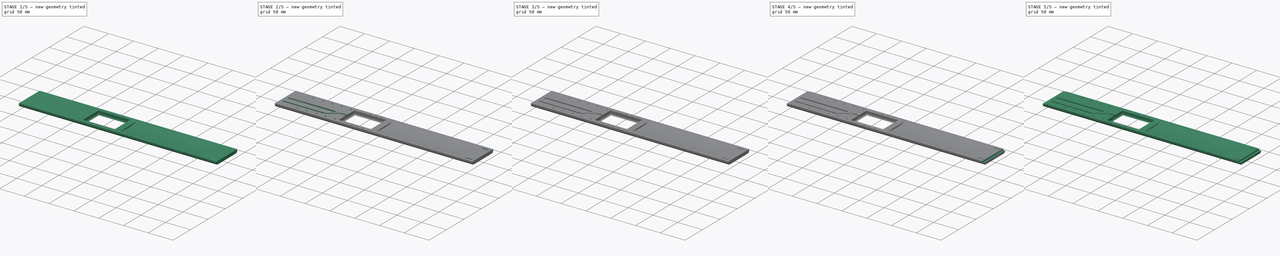
[diagram: build sequence overview — one tinted view per stage of 5, left to right]
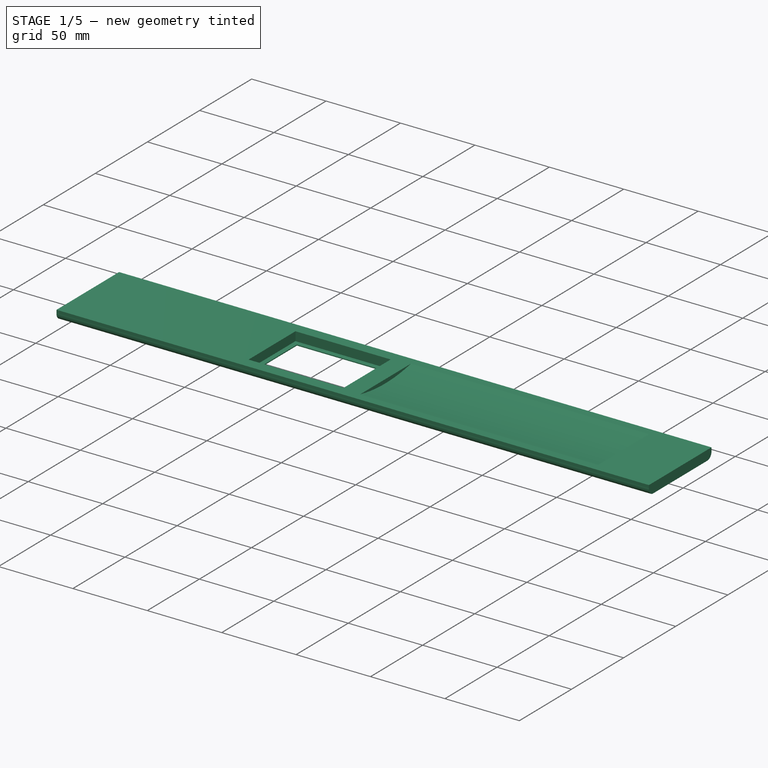
[diagram: stage 1 of 5 — iso view after this stage's code; geometry added in this stage tinted green]
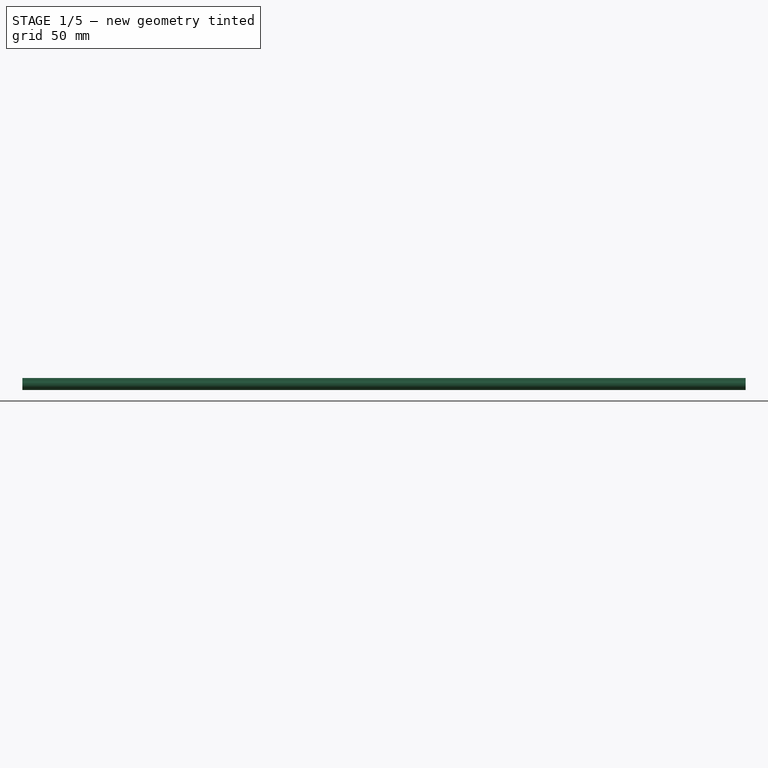
[diagram: stage 1 of 5 — front view after this stage's code; geometry added in this stage tinted green]
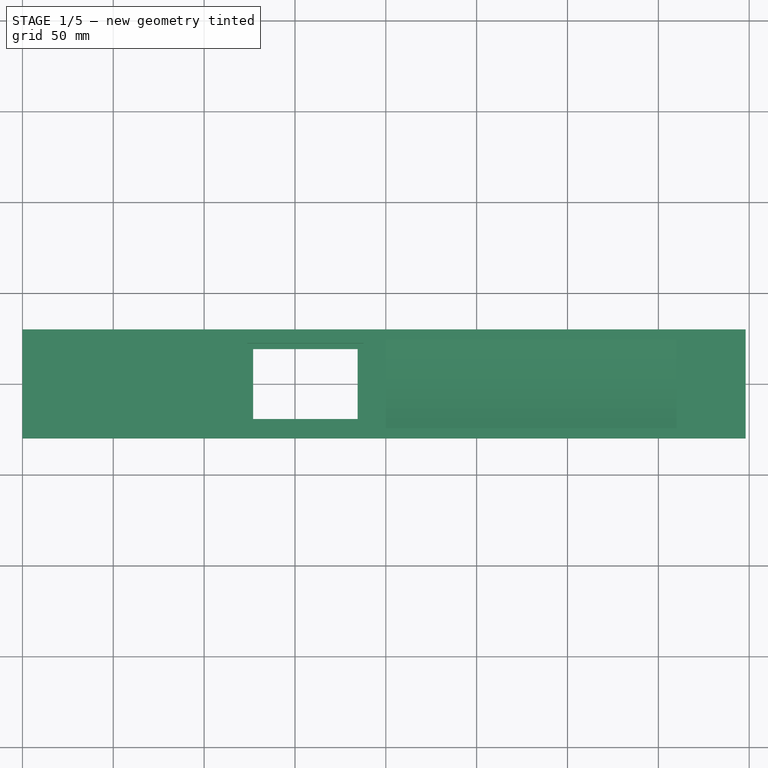
[diagram: stage 1 of 5 — top view after this stage's code; geometry added in this stage tinted green]
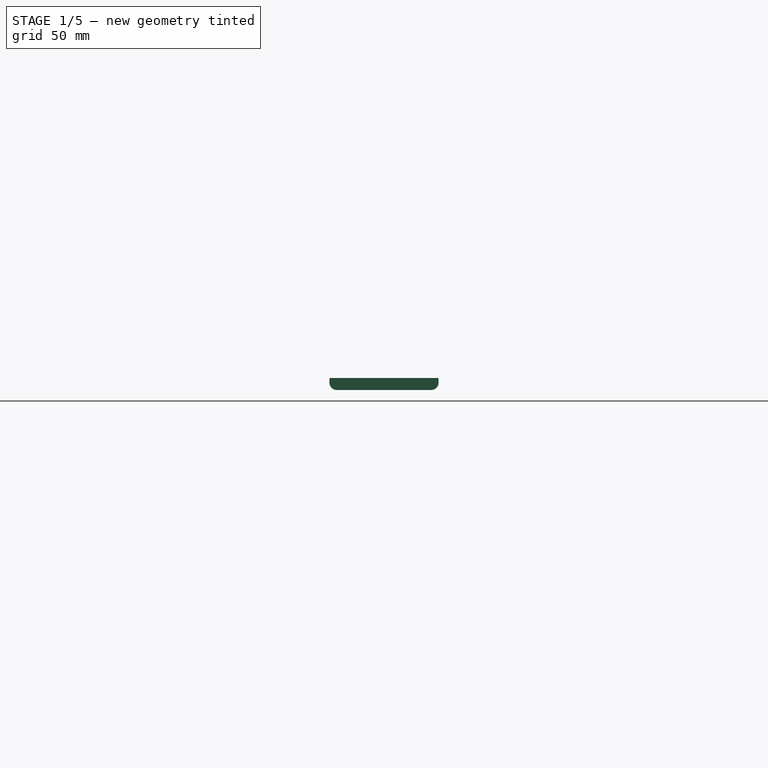
[diagram: stage 1 of 5 — right view after this stage's code; geometry added in this stage tinted green]
FCSTD DOCUMENT  (FreeCAD 0.19R24291 (Git))
Label: bruker_holder_070522
License: All rights reserved
LicenseURL: http://en.wikipedia.org/wiki/All_rights_reserved
objects: Sketcher::SketchObject×15, PartDesign::Pocket×13, PartDesign::Fillet×6, PartDesign::Pad×2, PartDesign::Mirrored×1, PartDesign::Body×1
note: 59 computed .brp shape members not serialized (recipe doc carries the construction recipe); baked Part::Feature solids carry a one-line shape summary decoded from their .brp

FEATURE [Sketcher::SketchObject] Sketch
  FullyConstrained = true
  MapMode = 5
  Placement = pos=(0,0,0) rot=(0.57735,0.57735,0.57735;2.0944rad)
  Support = -> [YZ_Plane]
  sketch-geometry (6):
    g0: LineSegment StartX=-30 StartY=6.6 StartZ=0 EndX=30 EndY=6.6 EndZ=0
    g1: ArcOfCircle CenterX=26 CenterY=4.03913 CenterZ=0 NormalX=0 NormalY=0 NormalZ=1 AngleXU=0 Radius=4.03913 StartAngle=4.71239 EndAngle=6.42249
    g2: LineSegment StartX=26 StartY=0 StartZ=0 EndX=-26 EndY=0 EndZ=0
    g3: ArcOfCircle CenterX=-26 CenterY=4.03913 CenterZ=0 NormalX=0 NormalY=0 NormalZ=1 AngleXU=0 Radius=4.03913 StartAngle=3.00228 EndAngle=4.71239
    g4: LineSegment StartX=30 StartY=6.6 StartZ=0 EndX=30 EndY=4.6 EndZ=0
    g5: LineSegment StartX=-30 StartY=6.6 StartZ=0 EndX=-30 EndY=4.6 EndZ=0
  constraints (16):
    c: Coincident(g1,g2)
    c: Tangent(g2,g3) = 1.5708
    c: DistanceX(g0,g0) = 60
    c: Symmetric(g0,g0,g-2)
    c: Symmetric(g2,g1,g-2)
    c: DistanceY(g2,g0) = 6.6
    c: Tangent(g1,g2) = 1.5708
    c: DistanceX(g2,g2) = 52
    c: Coincident(g4,g0)
    c: Coincident(g4,g1)
    c: Vertical(g4)
    c: Coincident(g5,g0)
    c: Coincident(g5,g3)
    c: Symmetric(g1,g3,g-2)
    c: PointOnObject(g-1,g2)
    c: DistanceY(g1,g0) = 2
FEATURE [PartDesign::Pad] Pad
  Direction = (1,1,1)
  Length = 398
  Length2 = 100
  Placement = pos=(0,0,0) rot=(0.57735,0.57735,0.57735;2.0944rad)
  Profile = -> Sketch
  Refine = true
  Type = 0
FEATURE [Sketcher::SketchObject] Sketch001
  FullyConstrained = true
  MapMode = 5
  Support = -> [XY_Plane]
  sketch-geometry (4):
    g0: LineSegment StartX=127 StartY=19.25 StartZ=0 EndX=184.5 EndY=19.25 EndZ=0
    g1: LineSegment StartX=184.5 StartY=19.25 StartZ=0 EndX=184.5 EndY=-19.25 EndZ=0
    g2: LineSegment StartX=184.5 StartY=-19.25 StartZ=0 EndX=127 EndY=-19.25 EndZ=0
    g3: LineSegment StartX=127 StartY=-19.25 StartZ=0 EndX=127 EndY=19.25 EndZ=0
  constraints (11):
    c: Coincident(g0,g1)
    c: Coincident(g1,g2)
    c: Coincident(g2,g3)
    c: Coincident(g3,g0)
    c: Horizontal(g0)
    c: Horizontal(g2)
    c: Vertical(g3)
    c: Symmetric(g0,g1,g-1)
    c: DistanceX(g0,g0) = 57.5
    c: DistanceY(g3,g3) = 38.5
    c: DistanceX(g-1,g0) = 127
FEATURE [PartDesign::Pocket] Pocket
  BaseFeature = -> Pad
  Length = 5
  Length2 = 100
  Midplane = true
  Placement = pos=(0,0,0) rot=(0.57735,0.57735,0.57735;2.0944rad)
  Profile = -> Sketch001
  Refine = true
  Type = 1
FEATURE [Sketcher::SketchObject] Sketch002
  AttachmentOffset = pos=(0,0,6.6) rot=(0,0,1;0rad)
  ExternalGeometry = -> [Pocket]
  FullyConstrained = true
  MapMode = 5
  Placement = pos=(0,0,6.6) rot=(0,0,1;0rad)
  Support = -> [XY_Plane]
  sketch-geometry (4):
    g0: LineSegment StartX=123.75 StartY=22.5 StartZ=0 EndX=187.75 EndY=22.5 EndZ=0
    g1: LineSegment StartX=187.75 StartY=22.5 StartZ=0 EndX=187.75 EndY=-22.5 EndZ=0
    g2: LineSegment StartX=187.75 StartY=-22.5 StartZ=0 EndX=123.75 EndY=-22.5 EndZ=0
    g3: LineSegment StartX=123.75 StartY=-22.5 StartZ=0 EndX=123.75 EndY=22.5 EndZ=0
  constraints (11):
    c: Coincident(g0,g1)
    c: Coincident(g1,g2)
    c: Coincident(g2,g3)
    c: Coincident(g3,g0)
    c: Horizontal(g0)
    c: Horizontal(g2)
    c: Vertical(g3)
    c: DistanceX(g0,g0) = 64
    c: DistanceY(g1,g1) = 45
    c: Symmetric(g0,g1,g-1)
    c: DistanceX(g-3,g0) = 3.25
FEATURE [PartDesign::Pocket] Pocket001
  BaseFeature = -> Pocket
  Length = 6
  Length2 = 100
  Placement = pos=(0,0,0) rot=(0.57735,0.57735,0.57735;2.0944rad)
  Profile = -> Sketch002
  Refine = true
  Type = 0
FEATURE [Sketcher::SketchObject] Sketch003
  AttachmentOffset = pos=(0,0,200) rot=(0,0,1;0rad)
  FullyConstrained = true
  MapMode = 5
  Placement = pos=(200,-4.44e-14,4.44e-14) rot=(0.57735,0.57735,0.57735;2.0944rad)
  Support = -> [YZ_Plane]
  sketch-geometry (1):
    g0: Circle CenterX=0 CenterY=120 CenterZ=0 NormalX=0 NormalY=0 NormalZ=1 AngleXU=0 Radius=116
  constraints (3):
    c: PointOnObject(g0,g-2)
    c: DistanceY(g-1,g0) = 120
    c: Radius(g0) = 116
FEATURE [PartDesign::Pocket] Pocket002  label="body_rest_groove"
  BaseFeature = -> Pocket001
  Length = 160
  Length2 = 100
  Placement = pos=(0,0,0) rot=(0.57735,0.57735,0.57735;2.0944rad)
  Profile = -> Sketch003
  Refine = true
  Reversed = true
  Type = 0
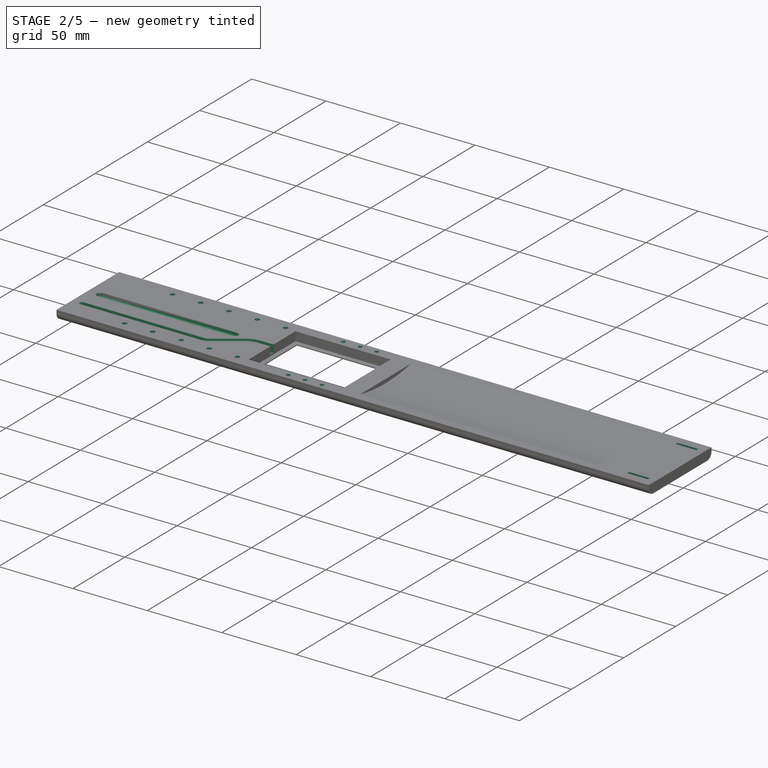
[diagram: stage 2 of 5 — iso view after this stage's code; geometry added in this stage tinted green]
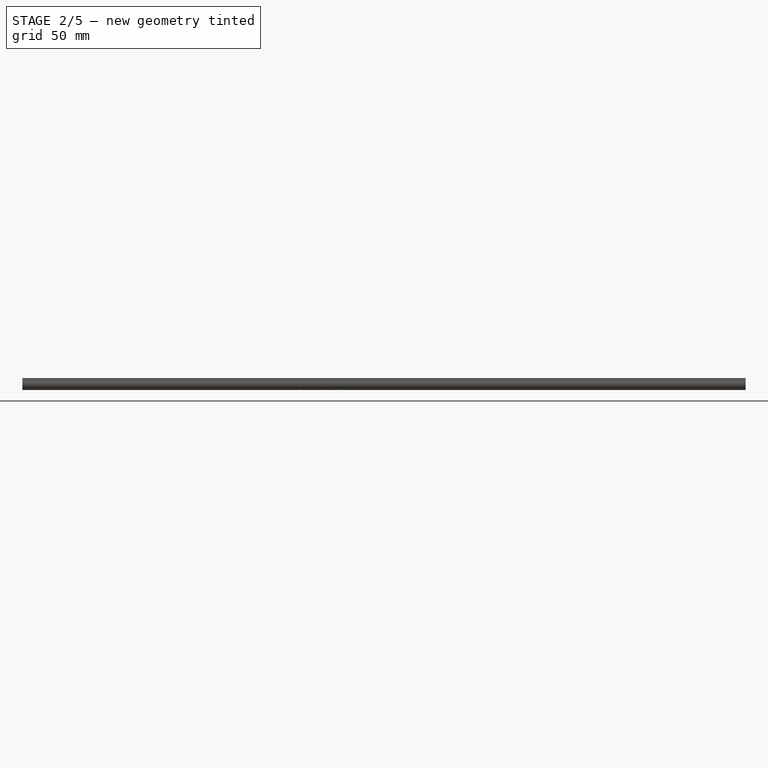
[diagram: stage 2 of 5 — front view after this stage's code; geometry added in this stage tinted green]
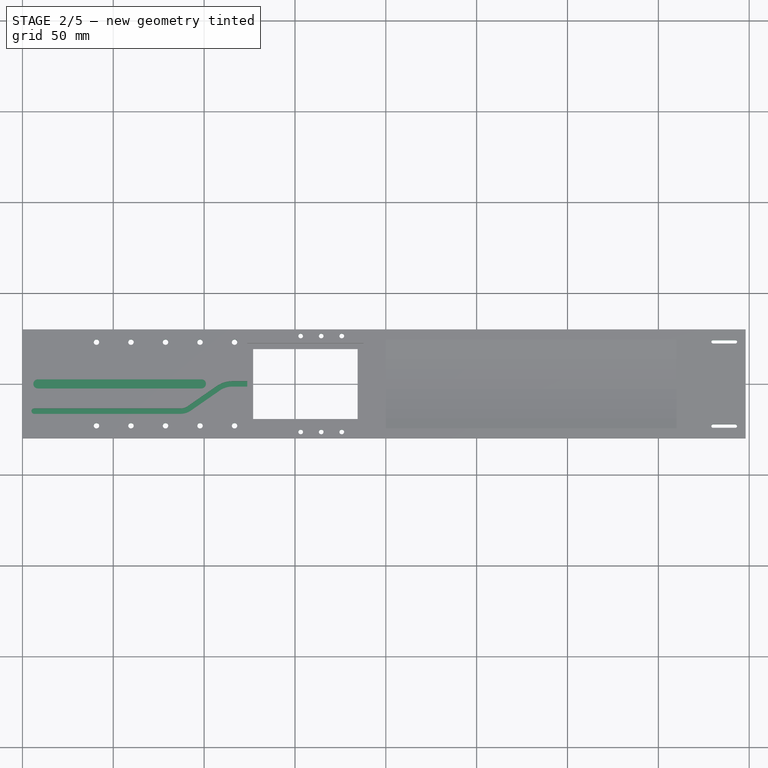
[diagram: stage 2 of 5 — top view after this stage's code; geometry added in this stage tinted green]
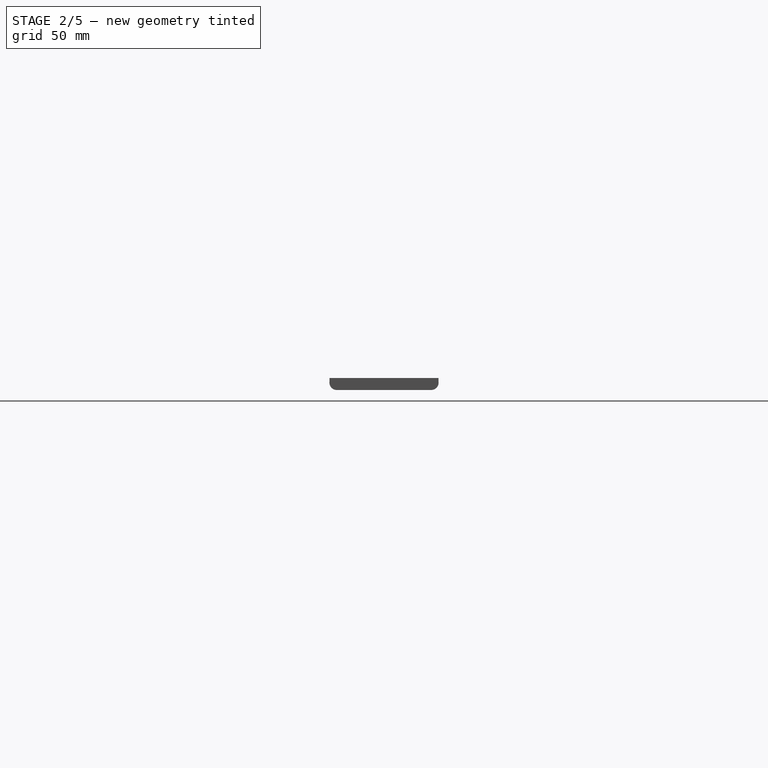
[diagram: stage 2 of 5 — right view after this stage's code; geometry added in this stage tinted green]
FEATURE [Sketcher::SketchObject] Sketch004
  AttachmentOffset = pos=(0,0,6.6) rot=(0,0,1;0rad)
  FullyConstrained = true
  MapMode = 5
  Placement = pos=(0,0,6.6) rot=(0,0,1;0rad)
  Support = -> [XY_Plane]
  sketch-geometry (4):
    g0: ArcOfCircle CenterX=8.5 CenterY=0 CenterZ=0 NormalX=0 NormalY=0 NormalZ=1 AngleXU=0 Radius=2.5 StartAngle=1.5708 EndAngle=4.71239
    g1: ArcOfCircle CenterX=98.5 CenterY=0 CenterZ=0 NormalX=0 NormalY=0 NormalZ=1 AngleXU=0 Radius=2.5 StartAngle=4.71239 EndAngle=7.85398
    g2: LineSegment StartX=8.5 StartY=-2.5 StartZ=0 EndX=98.5 EndY=-2.5 EndZ=0
    g3: LineSegment StartX=8.5 StartY=2.5 StartZ=0 EndX=98.5 EndY=2.5 EndZ=0
  constraints (10):
    c: Tangent(g0,g3) = 1.5708
    c: Tangent(g0,g2) = -1.5708
    c: Tangent(g2,g1) = -1.5708
    c: Tangent(g3,g1) = 1.5708
    c: Horizontal(g2)
    c: Equal(g0,g1)
    c: PointOnObject(g0,g-1)
    c: Radius(g0) = 2.5
    c: DistanceX(g3,g3) = 90
    c: DistanceX(g-1,g0) = 8.5
FEATURE [PartDesign::Pocket] Pocket003  label="front_central_groove"
  BaseFeature = -> Pocket002
  Length = 2
  Length2 = 100
  Placement = pos=(0,0,0) rot=(0.57735,0.57735,0.57735;2.0944rad)
  Profile = -> Sketch004
  Refine = true
  Type = 0
FEATURE [Sketcher::SketchObject] Sketch005
  AttachmentOffset = pos=(0,0,6.6) rot=(0,0,1;0rad)
  FullyConstrained = false
  MapMode = 5
  Placement = pos=(0,0,6.6) rot=(0,0,1;0rad)
  Support = -> [XY_Plane]
  sketch-geometry (12):
    g0: LineSegment StartX=125.165 StartY=1.50137 StartZ=0 EndX=115.42 EndY=1.50137 EndZ=0
    g1: ArcOfCircle CenterX=115.42 CenterY=-13.3672 CenterZ=0 NormalX=0 NormalY=0 NormalZ=1 AngleXU=0 Radius=14.8685 StartAngle=1.5708 EndAngle=2.17751
    g2: LineSegment StartX=106.942 StartY=-1.15225 StartZ=0 EndX=90.9213 EndY=-12.2715 EndZ=0
    g3: ArcOfCircle CenterX=87.0035 CenterY=-6.62644 CenterZ=0 NormalX=0 NormalY=0 NormalZ=1 AngleXU=0 Radius=6.87141 StartAngle=4.71239 EndAngle=5.3191
    g4: LineSegment StartX=87.0035 StartY=-13.4978 StartZ=0 EndX=6.5 EndY=-13.4978 EndZ=0
    g5: ArcOfCircle CenterX=6.5 CenterY=-14.9978 CenterZ=0 NormalX=0 NormalY=0 NormalZ=1 AngleXU=0 Radius=1.5 StartAngle=1.5708 EndAngle=4.71239
    g6: LineSegment StartX=6.5 StartY=-16.4978 StartZ=0 EndX=87.0035 EndY=-16.4978 EndZ=0
    g7: ArcOfCircle CenterX=87.0035 CenterY=-6.62644 CenterZ=0 NormalX=0 NormalY=0 NormalZ=1 AngleXU=0 Radius=9.87141 StartAngle=4.71239 EndAngle=5.3191
    g8: LineSegment StartX=92.6318 StartY=-14.7361 StartZ=0 EndX=108.653 EndY=-3.61684 EndZ=0
    g9: ArcOfCircle CenterX=115.42 CenterY=-13.3672 CenterZ=0 NormalX=0 NormalY=0 NormalZ=1 AngleXU=0 Radius=11.8685 StartAngle=1.59227 EndAngle=2.17751
    g10: LineSegment StartX=115.165 StartY=-1.50137 StartZ=0 EndX=125.165 EndY=-1.50137 EndZ=0
    g11: LineSegment StartX=125.165 StartY=-1.50137 StartZ=0 EndX=125.165 EndY=1.50137 EndZ=0
  constraints (23):
    c: Horizontal(g0)
    c: Tangent(g0,g1) = -1.5708
    c: Tangent(g2,g3) = 1.5708
    c: Horizontal(g4)
    c: Tangent(g4,g5) = -1.5708
    c: Horizontal(g6)
    c: Tangent(g6,g7) = -1.5708
    c: Tangent(g8,g9) = 1.5708
    c: Coincident(g9,g10)
    c: Horizontal(g10)
    c: Coincident(g10,g11)
    c: Coincident(g11,g0)
    c: Parallel(g2,g8)
    c: Coincident(g3,g7)
    c: Coincident(g9,g1)
    c: Tangent(g3,g4) = 1.5708
    c: Tangent(g5,g6) = -1.5708
    c: Tangent(g7,g8) = -1.5708
    c: Tangent(g1,g2) = -1.5708
    c: Symmetric(g0,g10,g-1)
    c: DistanceX(g-1,g4) = 6.5
    c: DistanceY(g5,g4) = 3
    c: DistanceX(g10,g10) = 10
FEATURE [PartDesign::Pocket] Pocket004  label="cable_groove"
  BaseFeature = -> Pocket003
  Length = 5
  Length2 = 100
  Placement = pos=(0,0,0) rot=(0.57735,0.57735,0.57735;2.0944rad)
  Profile = -> Sketch005
  Refine = true
  Type = 0
FEATURE [Sketcher::SketchObject] Sketch006
  ExternalGeometry = -> [Pocket004]
  FullyConstrained = true
  MapMode = 5
  Support = -> [XY_Plane]
  sketch-geometry (10):
    g0: Circle CenterX=116.75 CenterY=-23 CenterZ=0 NormalX=0 NormalY=0 NormalZ=1 AngleXU=0 Radius=1.5
    g1: Circle CenterX=97.75 CenterY=-23 CenterZ=0 NormalX=0 NormalY=0 NormalZ=1 AngleXU=0 Radius=1.5
    g2: Circle CenterX=78.75 CenterY=-23 CenterZ=0 NormalX=0 NormalY=0 NormalZ=1 AngleXU=0 Radius=1.5
    g3: Circle CenterX=59.75 CenterY=-23 CenterZ=0 NormalX=0 NormalY=0 NormalZ=1 AngleXU=0 Radius=1.5
    g4: Circle CenterX=40.75 CenterY=-23 CenterZ=0 NormalX=0 NormalY=0 NormalZ=1 AngleXU=0 Radius=1.5
    g5: Circle CenterX=116.75 CenterY=23 CenterZ=0 NormalX=0 NormalY=0 NormalZ=1 AngleXU=0 Radius=1.5
    g6: Circle CenterX=97.75 CenterY=23 CenterZ=0 NormalX=0 NormalY=0 NormalZ=1 AngleXU=0 Radius=1.5
    g7: Circle CenterX=78.75 CenterY=23 CenterZ=0 NormalX=0 NormalY=0 NormalZ=1 AngleXU=0 Radius=1.5
    g8: Circle CenterX=59.75 CenterY=23 CenterZ=0 NormalX=0 NormalY=0 NormalZ=1 AngleXU=0 Radius=1.5
    g9: Circle CenterX=40.75 CenterY=23 CenterZ=0 NormalX=0 NormalY=0 NormalZ=1 AngleXU=0 Radius=1.5
  constraints (30):
    c: Radius(g0) = 1.5
    c: DistanceY(g-4,g0) = 7
    c: DistanceX(g0,g-3) = 7
    c: Radius(g1) = 1.5
    c: DistanceX(g1,g0) = 19
    c: DistanceY(g-4,g1) = 7
    c: Radius(g2) = 1.5
    c: Radius(g3) = 1.5
    c: Radius(g4) = 1.5
    c: DistanceX(g4,g3) = 19
    c: DistanceX(g3,g2) = 19
    c: DistanceX(g2,g1) = 19
    c: Horizontal(g4,g3)
    c: Horizontal(g2,g3)
    c: Horizontal(g2,g1)
    c: Radius(g9) = 1.5
    c: Radius(g8) = 1.5
    c: Radius(g7) = 1.5
    c: Radius(g6) = 1.5
    c: Radius(g5) = 1.5
    c: DistanceX(g6,g5) = 19
    c: DistanceX(g7,g6) = 19
    c: DistanceX(g8,g7) = 19
    c: DistanceX(g9,g8) = 19
    c: Horizontal(g9,g8)
    c: Horizontal(g8,g7)
    c: Horizontal(g7,g6)
    c: Horizontal(g6,g5)
    c: Vertical(g5,g0)
    c: DistanceY(g5,g-5) = 7
FEATURE [PartDesign::Pocket] Pocket005  label="10_holes"
  BaseFeature = -> Pocket004
  Length = 5
  Length2 = 100
  Midplane = true
  Placement = pos=(0,0,0) rot=(0.57735,0.57735,0.57735;2.0944rad)
  Profile = -> Sketch006
  Refine = true
  Type = 1
FEATURE [Sketcher::SketchObject] Sketch007
  ExternalGeometry = -> [Pocket005]
  FullyConstrained = true
  MapMode = 5
  Support = -> [XY_Plane]
  sketch-geometry (6):
    g0: Circle CenterX=175.75 CenterY=-26.4 CenterZ=0 NormalX=0 NormalY=0 NormalZ=1 AngleXU=0 Radius=1.3
    g1: Circle CenterX=164.45 CenterY=-26.4 CenterZ=0 NormalX=0 NormalY=0 NormalZ=1 AngleXU=0 Radius=1.3
    g2: Circle CenterX=153.15 CenterY=-26.4 CenterZ=0 NormalX=0 NormalY=0 NormalZ=1 AngleXU=0 Radius=1.3
    g3: Circle CenterX=175.75 CenterY=26.4 CenterZ=0 NormalX=0 NormalY=0 NormalZ=1 AngleXU=0 Radius=1.3
    g4: Circle CenterX=164.45 CenterY=26.4 CenterZ=0 NormalX=0 NormalY=0 NormalZ=1 AngleXU=0 Radius=1.3
    g5: Circle CenterX=153.15 CenterY=26.4 CenterZ=0 NormalX=0 NormalY=0 NormalZ=1 AngleXU=0 Radius=1.3
  constraints (17):
    c: Radius(g3) = 1.3
    c: Radius(g4) = 1.3
    c: Radius(g5) = 1.3
    c: Radius(g2) = 1.3
    c: Radius(g1) = 1.3
    c: Radius(g0) = 1.3
    c: Horizontal(g2,g1)
    c: Horizontal(g0,g1)
    c: Horizontal(g4,g5)
    c: Horizontal(g4,g3)
    c: Symmetric(g5,g2,g-1)
    c: DistanceX(g5,g4) = 11.3
    c: DistanceX(g4,g3) = 11.3
    c: DistanceX(g2,g1) = 11.3
    c: DistanceX(g1,g0) = 11.3
    c: DistanceY(g3,g-3) = 3.6
    c: DistanceX(g0,g-5) = 12
FEATURE [PartDesign::Pocket] Pocket006  label="6_holes"
  BaseFeature = -> Pocket005
  Length = 5
  Length2 = 100
  Midplane = true
  Placement = pos=(0,0,0) rot=(0.57735,0.57735,0.57735;2.0944rad)
  Profile = -> Sketch007
  Refine = true
  Reversed = true
  Type = 1
FEATURE [Sketcher::SketchObject] Sketch008
  ExternalGeometry = -> [Pocket006]
  FullyConstrained = true
  MapMode = 5
  Support = -> [XY_Plane]
  sketch-geometry (8):
    g0: ArcOfCircle CenterX=380.1 CenterY=-23.2 CenterZ=0 NormalX=0 NormalY=0 NormalZ=1 AngleXU=0 Radius=0.95 StartAngle=1.5708 EndAngle=4.71239
    g1: ArcOfCircle CenterX=392.4 CenterY=-23.2 CenterZ=0 NormalX=0 NormalY=0 NormalZ=1 AngleXU=0 Radius=0.95 StartAngle=4.71239 EndAngle=7.85398
    g2: LineSegment StartX=380.1 StartY=-24.15 StartZ=0 EndX=392.4 EndY=-24.15 EndZ=0
    g3: LineSegment StartX=380.1 StartY=-22.25 StartZ=0 EndX=392.4 EndY=-22.25 EndZ=0
    g4: ArcOfCircle CenterX=380.1 CenterY=23.2 CenterZ=0 NormalX=0 NormalY=0 NormalZ=1 AngleXU=0 Radius=0.95 StartAngle=1.5708 EndAngle=4.71239
    g5: ArcOfCircle CenterX=392.4 CenterY=23.2 CenterZ=0 NormalX=0 NormalY=0 NormalZ=1 AngleXU=0 Radius=0.95 StartAngle=4.71239 EndAngle=7.85398
    g6: LineSegment StartX=380.1 StartY=22.25 StartZ=0 EndX=392.4 EndY=22.25 EndZ=0
    g7: LineSegment StartX=380.1 StartY=24.15 StartZ=0 EndX=392.4 EndY=24.15 EndZ=0
  constraints (20):
    c: Tangent(g0,g3) = 1.5708
    c: Tangent(g0,g2) = -1.5708
    c: Tangent(g2,g1) = -1.5708
    c: Tangent(g3,g1) = 1.5708
    c: Horizontal(g2)
    c: Equal(g0,g1)
    c: Tangent(g4,g7) = 1.5708
    c: Tangent(g4,g6) = -1.5708
    c: Tangent(g6,g5) = -1.5708
    c: Tangent(g7,g5) = 1.5708
    c: Horizontal(g6)
    c: Equal(g4,g5)
    c: Radius(g1) = 0.95
    c: Radius(g5) = 0.95
    c: DistanceX(g6,g6) = 12.3
    c: DistanceX(g3,g3) = 12.3
    c: DistanceY(g4,g-3) = 6.8
    c: DistanceY(g-3,g0) = 6.8
    c: DistanceX(g5,g-3) = 5.6
    c: DistanceX(g1,g-3) = 5.6
FEATURE [PartDesign::Pocket] Pocket007
  BaseFeature = -> Pocket006
  Length = 5
  Length2 = 100
  Placement = pos=(0,0,0) rot=(0.57735,0.57735,0.57735;2.0944rad)
  Profile = -> Sketch008
  Refine = true
  Reversed = true
  Type = 1
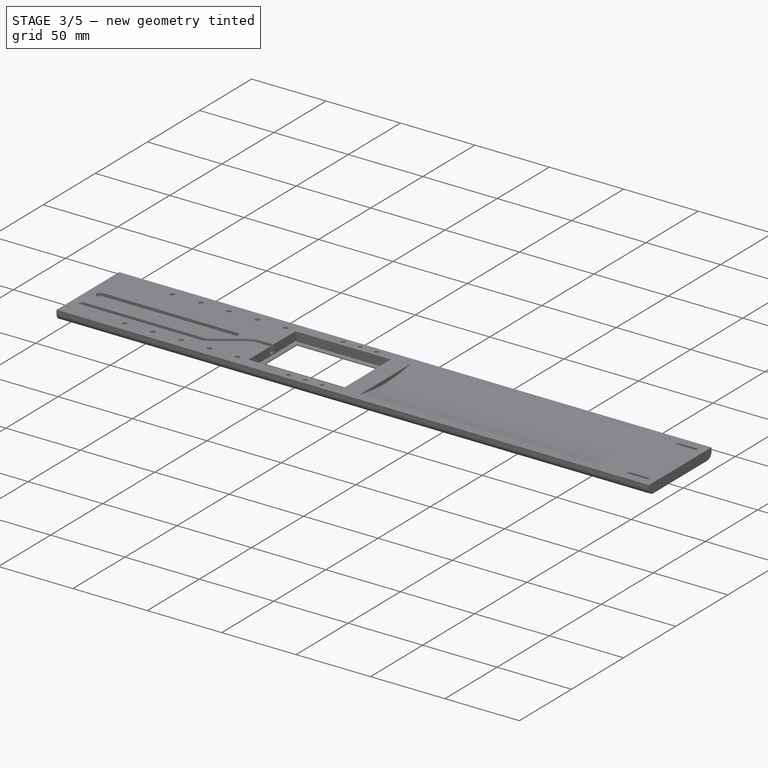
[diagram: stage 3 of 5 — iso view after this stage's code; geometry added in this stage tinted green]
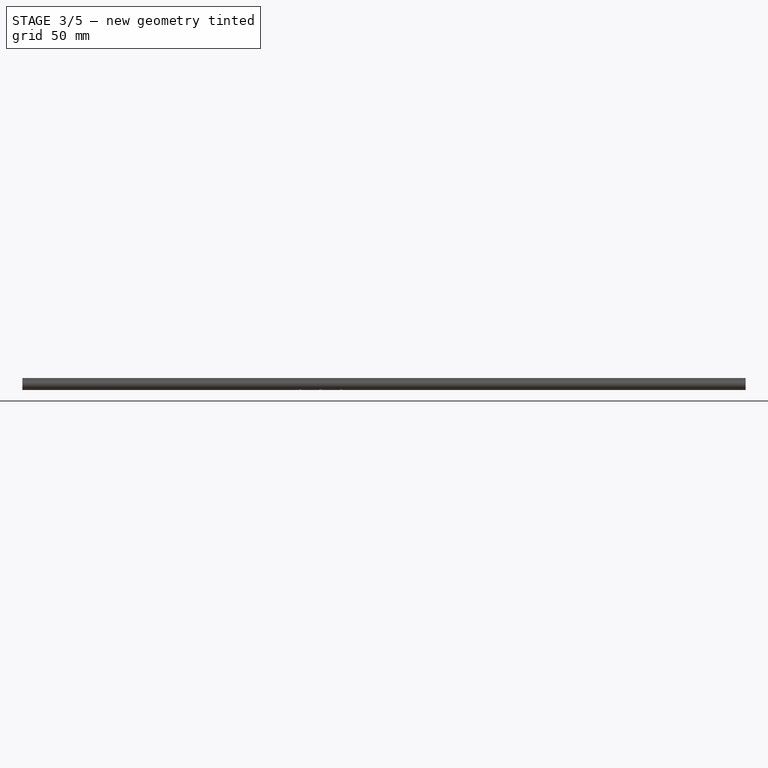
[diagram: stage 3 of 5 — front view after this stage's code; geometry added in this stage tinted green]
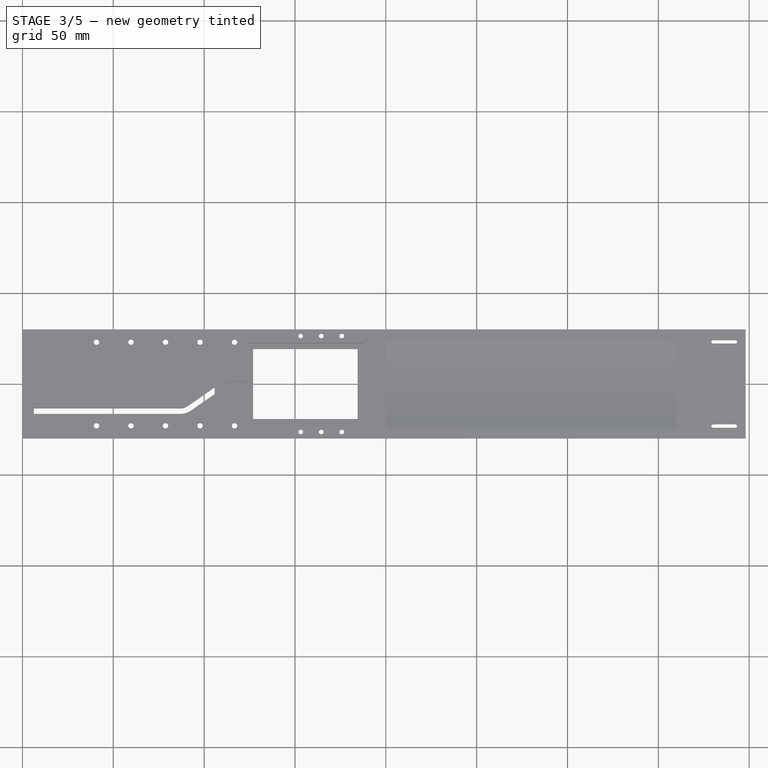
[diagram: stage 3 of 5 — top view after this stage's code; geometry added in this stage tinted green]
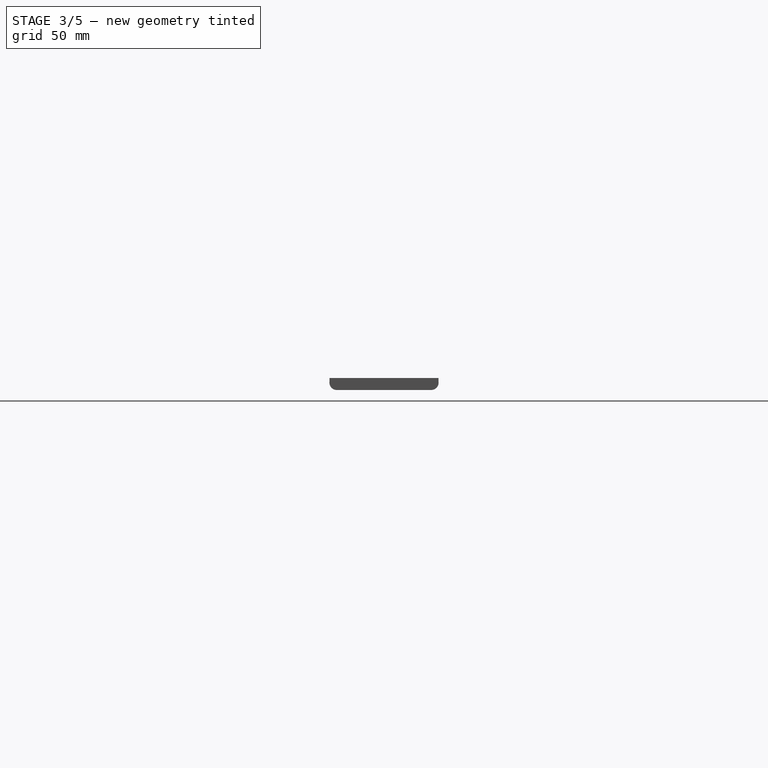
[diagram: stage 3 of 5 — right view after this stage's code; geometry added in this stage tinted green]
FEATURE [Sketcher::SketchObject] Sketch009
  ExternalGeometry = -> [Pocket007]
  FullyConstrained = false
  MapMode = 5
  Support = -> [XY_Plane]
  sketch-geometry (8):
    g0: LineSegment StartX=393.35 StartY=23.2 StartZ=0 EndX=393.35 EndY=4.2 EndZ=0
    g1: ArcOfCircle CenterX=392.4 CenterY=4.2 CenterZ=0 NormalX=0 NormalY=0 NormalZ=1 AngleXU=0 Radius=0.95 StartAngle=4.71239 EndAngle=6.28319
    g2: LineSegment StartX=392.4 StartY=3.25 StartZ=0 EndX=382.118 EndY=3.25 EndZ=0
    g3: ArcOfCircle CenterX=382.118 CenterY=4.2 CenterZ=0 NormalX=0 NormalY=0 NormalZ=1 AngleXU=0 Radius=0.95 StartAngle=3.14159 EndAngle=4.71239
    g4: LineSegment StartX=381.168 StartY=4.2 StartZ=0 EndX=381.168 EndY=23.2 EndZ=0
    g5: ArcOfCircle CenterX=382.118 CenterY=23.2 CenterZ=0 NormalX=0 NormalY=0 NormalZ=1 AngleXU=0 Radius=0.95 StartAngle=1.5708 EndAngle=3.14159
    g6: LineSegment StartX=382.118 StartY=24.15 StartZ=0 EndX=392.4 EndY=24.15 EndZ=0
    g7: ArcOfCircle CenterX=392.4 CenterY=23.2 CenterZ=0 NormalX=0 NormalY=0 NormalZ=1 AngleXU=0 Radius=0.95 StartAngle=5e-16 EndAngle=1.5708
  constraints (19):
    c: Vertical(g0)
    c: Tangent(g0,g1) = 1.5708
    c: Horizontal(g2)
    c: Tangent(g2,g3) = 1.5708
    c: Vertical(g4)
    c: Tangent(g4,g5) = 1.5708
    c: Tangent(g6,g7) = 1.5708
    c: Horizontal(g6)
    c: Tangent(g5,g6) = 1.5708
    c: Tangent(g7,g0) = 1.5708
    c: Tangent(g1,g2) = 1.5708
    c: Tangent(g3,g4) = 1.5708
    c: Vertical(g1,g7)
    c: Horizontal(g7,g5)
    c: Horizontal(g3,g1)
    c: Radius(g7) = 0.95
    c: DistanceX(g7,g-3) = 5.6
    c: DistanceY(g7,g-3) = 6.8
    c: DistanceY(g0,g0) = 19
FEATURE [PartDesign::Pocket] Pocket008
  BaseFeature = -> Pocket007
  Length = 3.5
  Length2 = 100
  Placement = pos=(0,0,0) rot=(0.57735,0.57735,0.57735;2.0944rad)
  Profile = -> Sketch009
  Refine = true
  Reversed = true
  Type = 0
FEATURE [PartDesign::Mirrored] Mirrored
  BaseFeature = -> Pocket008
  MirrorPlane = -> Sketch009 [H_Axis]
  Originals = -> [Pocket008]
  Placement = pos=(0,0,0) rot=(0.57735,0.57735,0.57735;2.0944rad)
  Refine = true
FEATURE [Sketcher::SketchObject] Sketch011
  ExternalGeometry = -> [Mirrored]
  FullyConstrained = false
  MapMode = 5
  Support = -> [XY_Plane]
  sketch-geometry (8):
    g0: LineSegment StartX=105.77 StartY=17 StartZ=0 EndX=105.77 EndY=-17 EndZ=0
    g1: ArcOfCircle CenterX=104.07 CenterY=-17 CenterZ=0 NormalX=0 NormalY=0 NormalZ=1 AngleXU=0 Radius=1.7 StartAngle=4.71239 EndAngle=6.28319
    g2: LineSegment StartX=104.07 StartY=-18.7 StartZ=0 EndX=8 EndY=-18.7 EndZ=0
    g3: ArcOfCircle CenterX=8 CenterY=-17 CenterZ=0 NormalX=0 NormalY=0 NormalZ=1 AngleXU=0 Radius=1.7 StartAngle=3.14159 EndAngle=4.71239
    g4: LineSegment StartX=6.3 StartY=-17 StartZ=0 EndX=6.3 EndY=17 EndZ=0
    g5: ArcOfCircle CenterX=8 CenterY=17 CenterZ=0 NormalX=0 NormalY=0 NormalZ=1 AngleXU=0 Radius=1.7 StartAngle=1.57079 EndAngle=3.14159
    g6: LineSegment StartX=8.00002 StartY=18.7 StartZ=0 EndX=104.07 EndY=18.7 EndZ=0
    g7: ArcOfCircle CenterX=104.07 CenterY=17 CenterZ=0 NormalX=0 NormalY=0 NormalZ=1 AngleXU=0 Radius=1.7 StartAngle=1.75148e-07 EndAngle=1.5708
  constraints (22):
    c: Vertical(g0)
    c: Tangent(g0,g1) = 1.5708
    c: Coincident(g1,g2)
    c: Horizontal(g2)
    c: Tangent(g2,g3) = 1.5708
    c: Coincident(g3,g4)
    c: Vertical(g4)
    c: Tangent(g4,g5) = 1.5708
    c: Coincident(g5,g6)
    c: Horizontal(g6)
    c: Tangent(g6,g7) = 1.5708
    c: Coincident(g7,g0)
    c: Tangent(g7,g0)
    c: Tangent(g2,g1)
    c: Tangent(g5,g6)
    c: Tangent(g4,g3)
    c: Vertical(g3,g5)
    c: Horizontal(g7,g5)
    c: Symmetric(g7,g1,g-1)
    c: Radius(g5) = 1.7
    c: DistanceY(g5,g-3) = 11.3
    c: DistanceX(g-3,g4) = 6.3
FEATURE [PartDesign::Pocket] Pocket009
  BaseFeature = -> Mirrored
  Length = 2.8
  Length2 = 100
  Placement = pos=(0,0,0) rot=(0.57735,0.57735,0.57735;2.0944rad)
  Profile = -> Sketch011
  Refine = true
  Reversed = true
  Type = 0
FEATURE [Sketcher::SketchObject] Sketch012
  FullyConstrained = true
  MapMode = 5
  Support = -> [XY_Plane]
  sketch-geometry (4):
    g0: ArcOfCircle CenterX=37.5 CenterY=-2e-16 CenterZ=0 NormalX=0 NormalY=0 NormalZ=1 AngleXU=0 Radius=4.77 StartAngle=1.5708 EndAngle=4.71239
    g1: ArcOfCircle CenterX=58.5 CenterY=0 CenterZ=0 NormalX=0 NormalY=0 NormalZ=1 AngleXU=0 Radius=4.77 StartAngle=4.71239 EndAngle=7.85398
    g2: LineSegment StartX=37.5 StartY=-4.77 StartZ=0 EndX=58.5 EndY=-4.77 EndZ=0
    g3: LineSegment StartX=37.5 StartY=4.77 StartZ=0 EndX=58.5 EndY=4.77 EndZ=0
  constraints (10):
    c: Tangent(g0,g3) = 1.5708
    c: Tangent(g0,g2) = -1.5708
    c: Tangent(g2,g1) = -1.5708
    c: Tangent(g3,g1) = 1.5708
    c: Horizontal(g2)
    c: Equal(g0,g1)
    c: PointOnObject(g1,g-1)
    c: Radius(g1) = 4.77
    c: DistanceX(g-1,g0) = 37.5
    c: DistanceX(g3,g3) = 21
FEATURE [PartDesign::Pad] Pad001
  BaseFeature = -> Pocket009
  Direction = (1,1,1)
  Length = 2.8
  Length2 = 100
  Placement = pos=(0,0,0) rot=(0.57735,0.57735,0.57735;2.0944rad)
  Profile = -> Sketch012
  Refine = true
  Type = 0
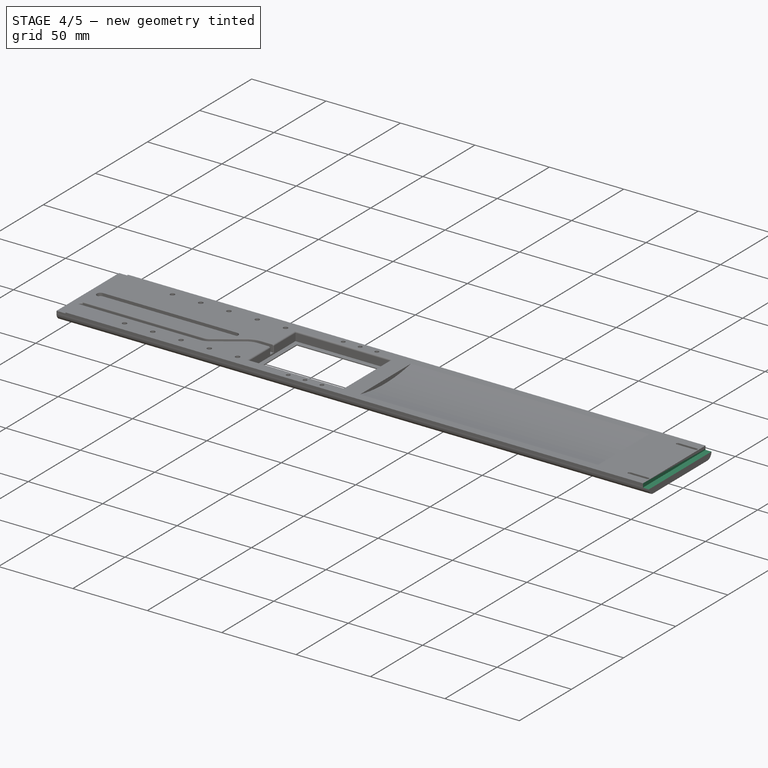
[diagram: stage 4 of 5 — iso view after this stage's code; geometry added in this stage tinted green]
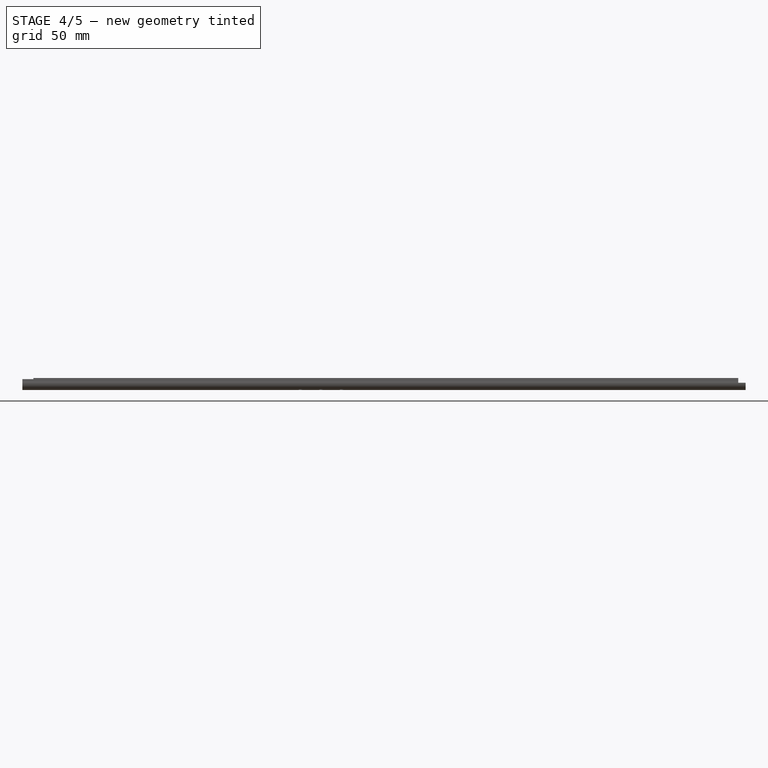
[diagram: stage 4 of 5 — front view after this stage's code; geometry added in this stage tinted green]
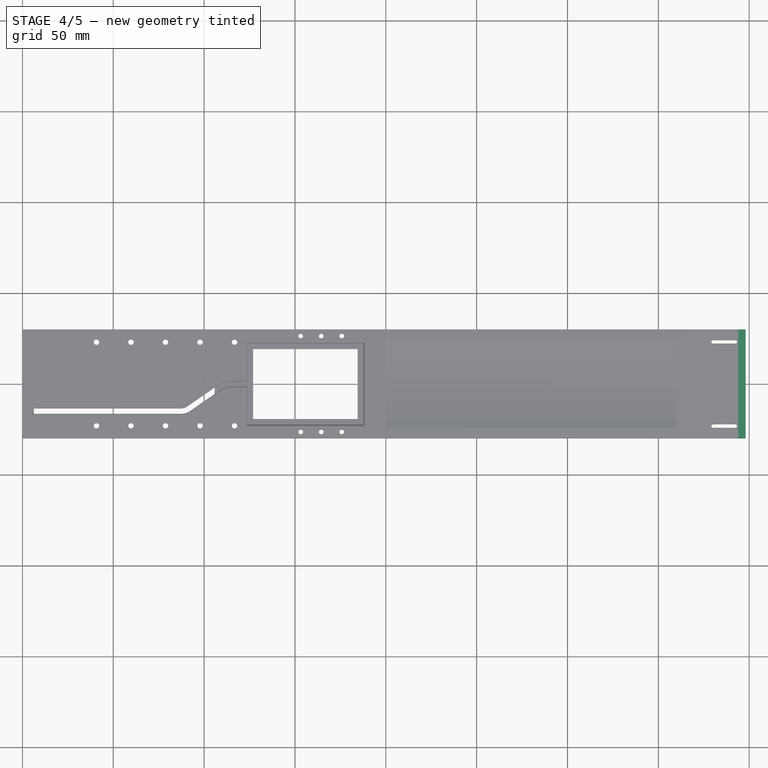
[diagram: stage 4 of 5 — top view after this stage's code; geometry added in this stage tinted green]
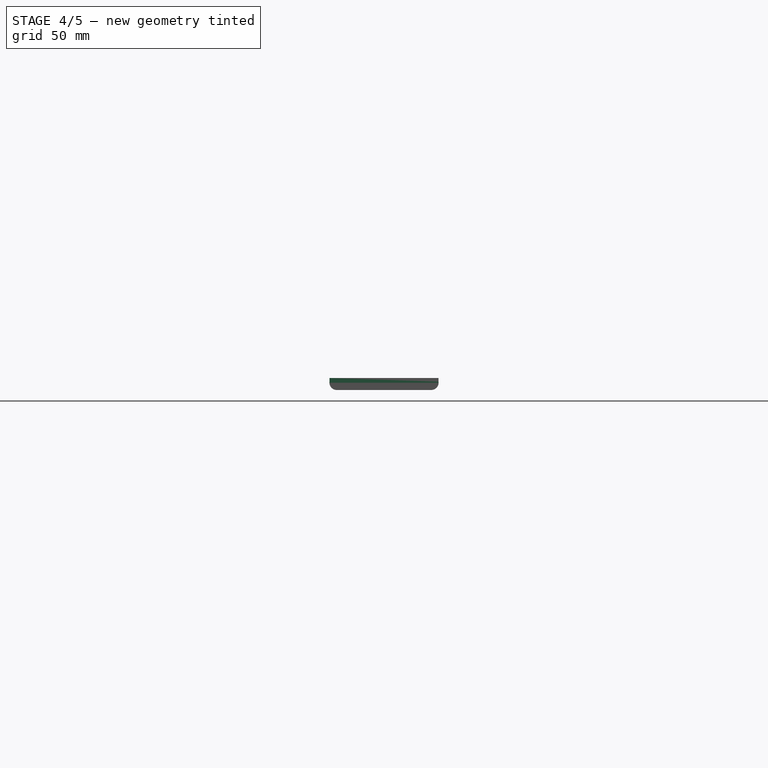
[diagram: stage 4 of 5 — right view after this stage's code; geometry added in this stage tinted green]
FEATURE [Sketcher::SketchObject] Sketch013
  FullyConstrained = true
  MapMode = 5
  Support = -> [XY_Plane]
  sketch-geometry (4):
    g0: ArcOfCircle CenterX=39.5 CenterY=0 CenterZ=0 NormalX=0 NormalY=0 NormalZ=1 AngleXU=0 Radius=3.27 StartAngle=1.5708 EndAngle=4.71239
    g1: ArcOfCircle CenterX=60.5 CenterY=0 CenterZ=0 NormalX=0 NormalY=0 NormalZ=1 AngleXU=0 Radius=3.27 StartAngle=4.71239 EndAngle=7.85398
    g2: LineSegment StartX=39.5 StartY=-3.27 StartZ=0 EndX=60.5 EndY=-3.27 EndZ=0
    g3: LineSegment StartX=39.5 StartY=3.27 StartZ=0 EndX=60.5 EndY=3.27 EndZ=0
  constraints (10):
    c: Tangent(g0,g3) = 1.5708
    c: Tangent(g0,g2) = -1.5708
    c: Tangent(g2,g1) = -1.5708
    c: Tangent(g3,g1) = 1.5708
    c: Horizontal(g2)
    c: Equal(g0,g1)
    c: PointOnObject(g1,g-1)
    c: Radius(g1) = 3.27
    c: DistanceX(g-1,g0) = 39.5
    c: DistanceX(g3,g3) = 21
FEATURE [PartDesign::Pocket] Pocket010
  BaseFeature = -> Pad001
  Length = 2
  Length2 = 100
  Placement = pos=(0,0,0) rot=(0.57735,0.57735,0.57735;2.0944rad)
  Profile = -> Sketch013
  Refine = true
  Reversed = true
  Type = 0
FEATURE [Sketcher::SketchObject] Sketch014
  FullyConstrained = true
  MapMode = 5
  Placement = pos=(0,0,0) rot=(0.57735,0.57735,0.57735;2.0944rad)
  Support = -> [YZ_Plane]
  sketch-geometry (4):
    g0: LineSegment StartX=-34 StartY=16 StartZ=0 EndX=34 EndY=16 EndZ=0
    g1: LineSegment StartX=34 StartY=16 StartZ=0 EndX=34 EndY=6 EndZ=0
    g2: LineSegment StartX=34 StartY=6 StartZ=0 EndX=-34 EndY=6 EndZ=0
    g3: LineSegment StartX=-34 StartY=6 StartZ=0 EndX=-34 EndY=16 EndZ=0
  constraints (11):
    c: Coincident(g0,g1)
    c: Coincident(g1,g2)
    c: Coincident(g2,g3)
    c: Coincident(g3,g0)
    c: Horizontal(g2)
    c: Vertical(g1)
    c: Vertical(g3)
    c: Symmetric(g0,g0,g-2)
    c: DistanceY(g-1,g1) = 6
    c: DistanceX(g0,g0) = 68
    c: DistanceY(g3,g3) = 10
FEATURE [PartDesign::Pocket] Pocket011
  BaseFeature = -> Pocket010
  Length = 6
  Length2 = 100
  Placement = pos=(0,0,0) rot=(0.57735,0.57735,0.57735;2.0944rad)
  Profile = -> Sketch014
  Refine = true
  Reversed = true
  Type = 0
FEATURE [Sketcher::SketchObject] Sketch015
  AttachmentOffset = pos=(0,0,400) rot=(0,0,1;0rad)
  FullyConstrained = true
  MapMode = 5
  Placement = pos=(400,-8.88e-14,8.88e-14) rot=(0.57735,0.57735,0.57735;2.0944rad)
  Support = -> [YZ_Plane]
  sketch-geometry (4):
    g0: LineSegment StartX=-34 StartY=16 StartZ=0 EndX=34 EndY=16 EndZ=0
    g1: LineSegment StartX=34 StartY=16 StartZ=0 EndX=34 EndY=4 EndZ=0
    g2: LineSegment StartX=34 StartY=4 StartZ=0 EndX=-34 EndY=4 EndZ=0
    g3: LineSegment StartX=-34 StartY=4 StartZ=0 EndX=-34 EndY=16 EndZ=0
  constraints (11):
    c: Coincident(g0,g1)
    c: Coincident(g1,g2)
    c: Coincident(g2,g3)
    c: Coincident(g3,g0)
    c: Horizontal(g2)
    c: Vertical(g1)
    c: Vertical(g3)
    c: Symmetric(g0,g0,g-2)
    c: DistanceY(g-1,g1) = 4
    c: DistanceX(g0,g0) = 68
    c: DistanceY(g3,g3) = 12
FEATURE [PartDesign::Pocket] Pocket012
  BaseFeature = -> Pocket011
  Length = 6
  Length2 = 100
  Placement = pos=(0,0,0) rot=(0.57735,0.57735,0.57735;2.0944rad)
  Profile = -> Sketch015
  Refine = true
  Type = 0
FEATURE [PartDesign::Fillet] Fillet
  Base = -> Pocket012 [Edge8,Edge7,Edge11,Edge10,Edge9]
  BaseFeature = -> Pocket012
  Placement = pos=(0,0,0) rot=(0.57735,0.57735,0.57735;2.0944rad)
  Radius = 1
  Refine = true
  SupportTransform = false
FEATURE [PartDesign::Fillet] Fillet001
  Base = -> Fillet [Edge9,Edge20,Edge18,Edge7,Edge16,Edge5,Edge14,Edge3,Edge1,Edge12,Edge82]
  BaseFeature = -> Fillet
  Placement = pos=(0,0,0) rot=(0.57735,0.57735,0.57735;2.0944rad)
  Radius = 0.5
  Refine = true
  SupportTransform = false
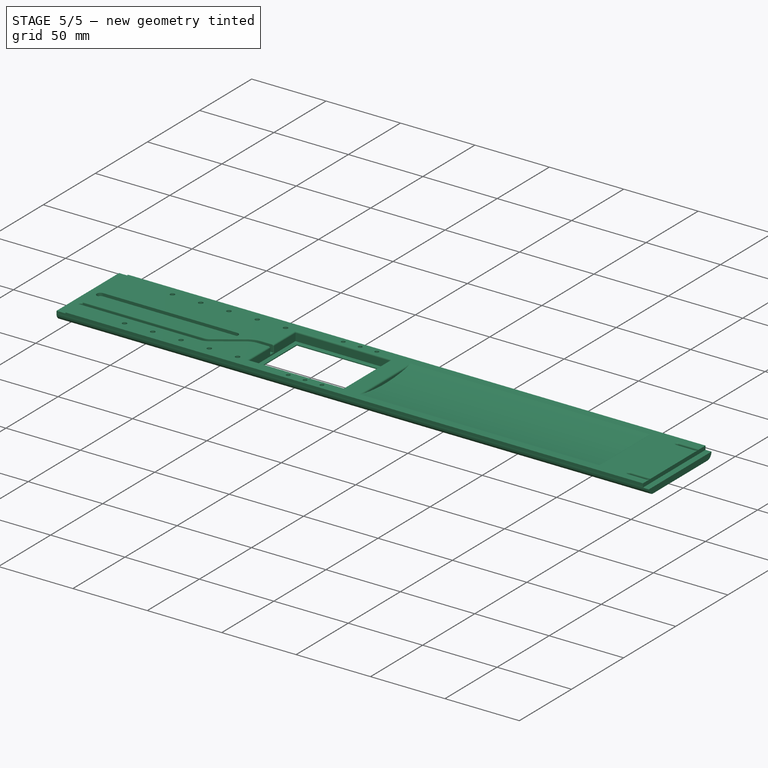
[diagram: stage 5 of 5 — iso view after this stage's code; geometry added in this stage tinted green]
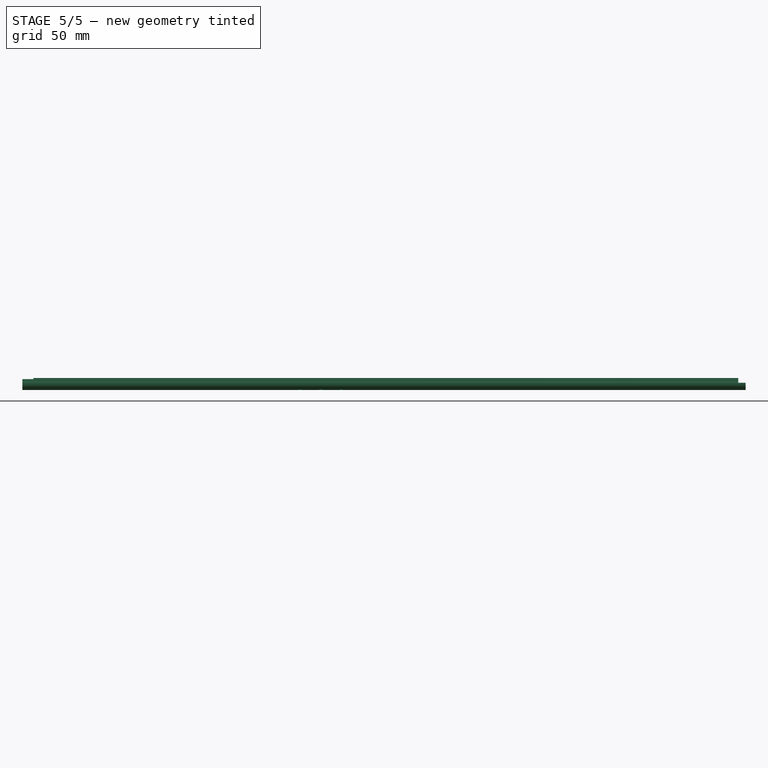
[diagram: stage 5 of 5 — front view after this stage's code; geometry added in this stage tinted green]
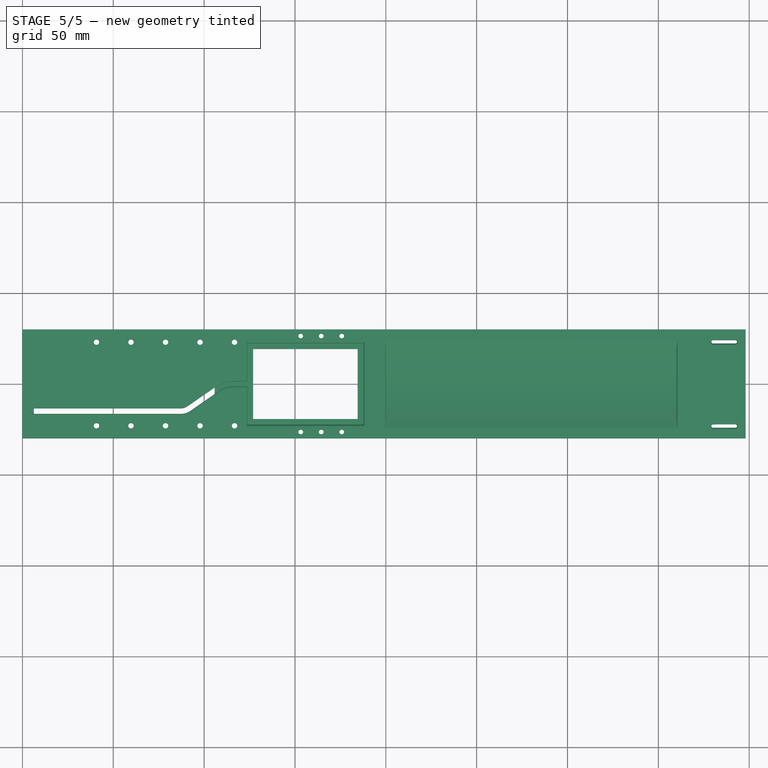
[diagram: stage 5 of 5 — top view after this stage's code; geometry added in this stage tinted green]
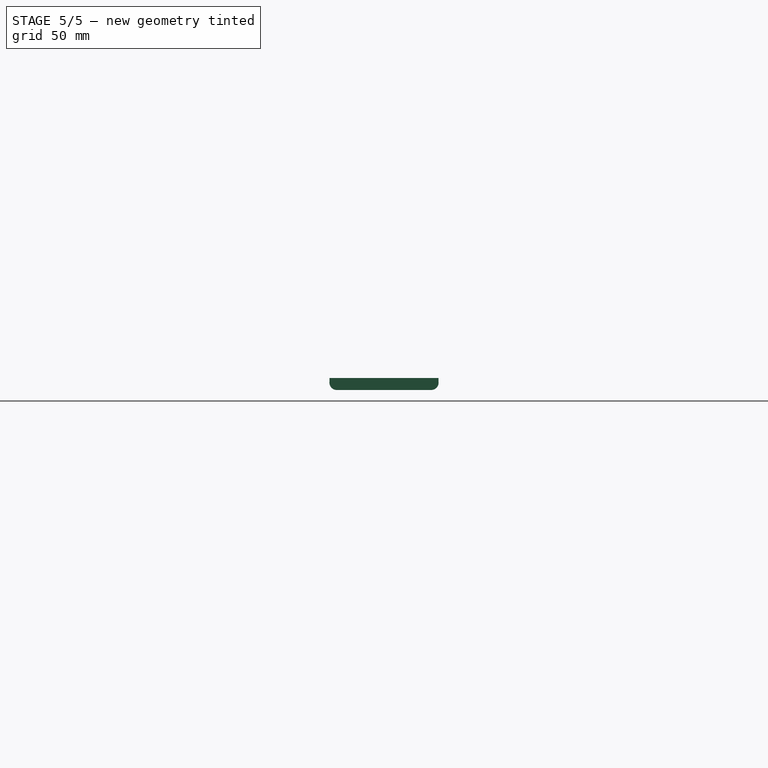
[diagram: stage 5 of 5 — right view after this stage's code; geometry added in this stage tinted green]
FEATURE [PartDesign::Fillet] Fillet002
  Base = -> Fillet001 [Edge32,Edge34,Edge33,Edge35]
  BaseFeature = -> Fillet001
  Placement = pos=(0,0,0) rot=(0.57735,0.57735,0.57735;2.0944rad)
  Radius = 1
  Refine = true
  SupportTransform = false
FEATURE [PartDesign::Fillet] Fillet003
  Base = -> Fillet002 [Edge33,Edge30,Edge31,Edge32]
  BaseFeature = -> Fillet002
  Placement = pos=(0,0,0) rot=(0.57735,0.57735,0.57735;2.0944rad)
  Radius = 1
  Refine = true
  SupportTransform = false
FEATURE [PartDesign::Fillet] Fillet004
  Base = -> Fillet003 [Edge36,Edge39]
  BaseFeature = -> Fillet003
  Placement = pos=(0,0,0) rot=(0.57735,0.57735,0.57735;2.0944rad)
  Radius = 1
  Refine = true
  SupportTransform = false
FEATURE [PartDesign::Fillet] Fillet005
  Base = -> Fillet004 [Edge2,Edge7]
  BaseFeature = -> Fillet004
  Placement = pos=(0,0,0) rot=(0.57735,0.57735,0.57735;2.0944rad)
  Radius = 1
  Refine = true
  SupportTransform = false
FEATURE [PartDesign::Body] Body
  Group = -> [Sketch,Pad,Sketch001,Pocket,Sketch002,Pocket001,Sketch003,Pocket002,Sketch004,Pocket003,Sketch005,Pocket004,Sketch006,Pocket005,Sketch007,Pocket006,Sketch008,Pocket007,Sketch009,Pocket008,Mirrored,Sketch011,Pocket009,Sketch012,Pad001,Sketch013,Pocket010,Sketch014,Pocket011,Sketch015,Pocket012,Fillet,Fillet001,Fillet002,Fillet003,Fillet004,Fillet005]
  Origin = -> Origin
  Tip = -> Fillet005
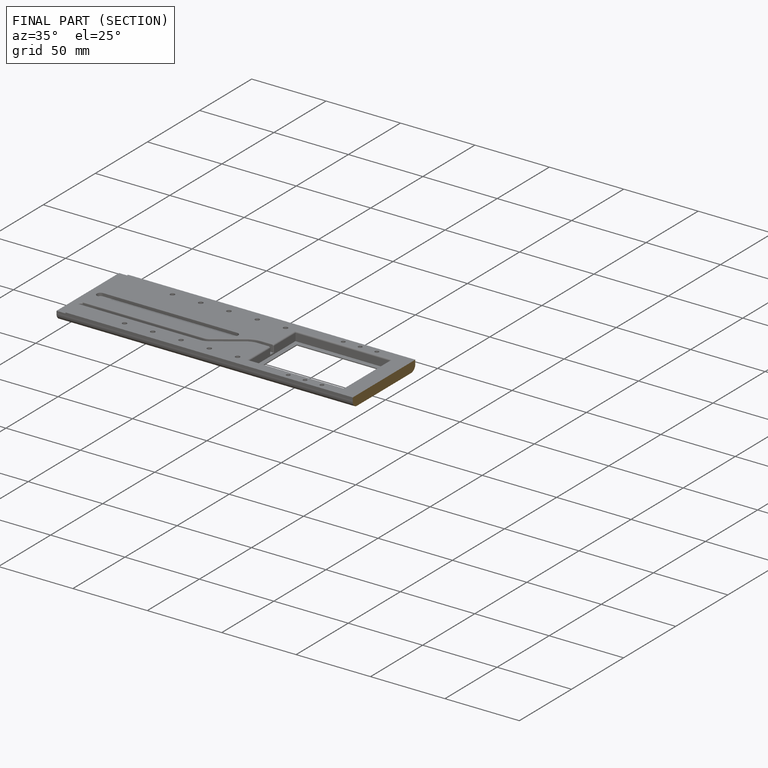
[diagram: finished part — half-section view (interior)]
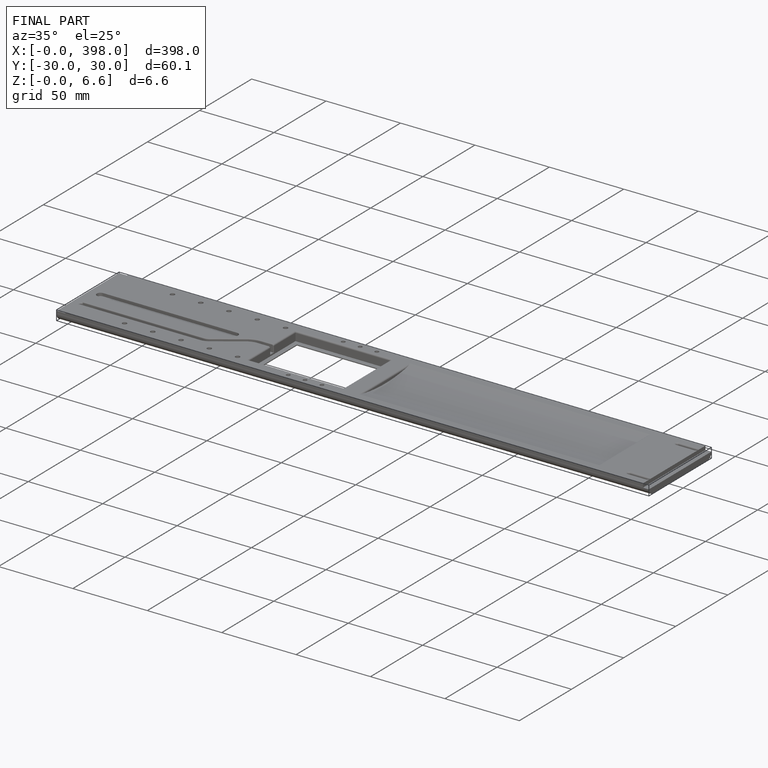
[diagram: finished part — iso view with bounding-box wireframe]
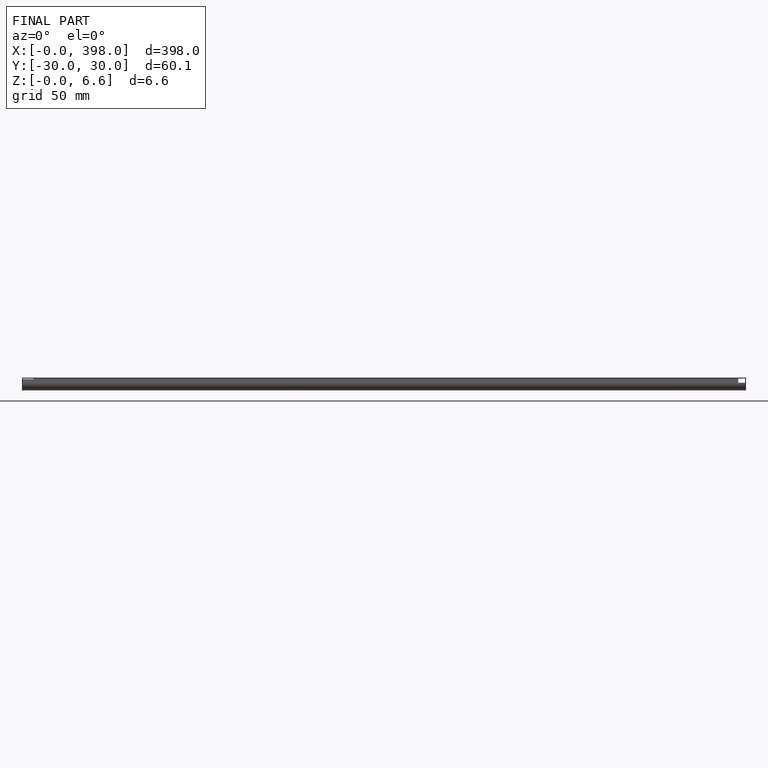
[diagram: finished part — front view with bounding-box wireframe]
